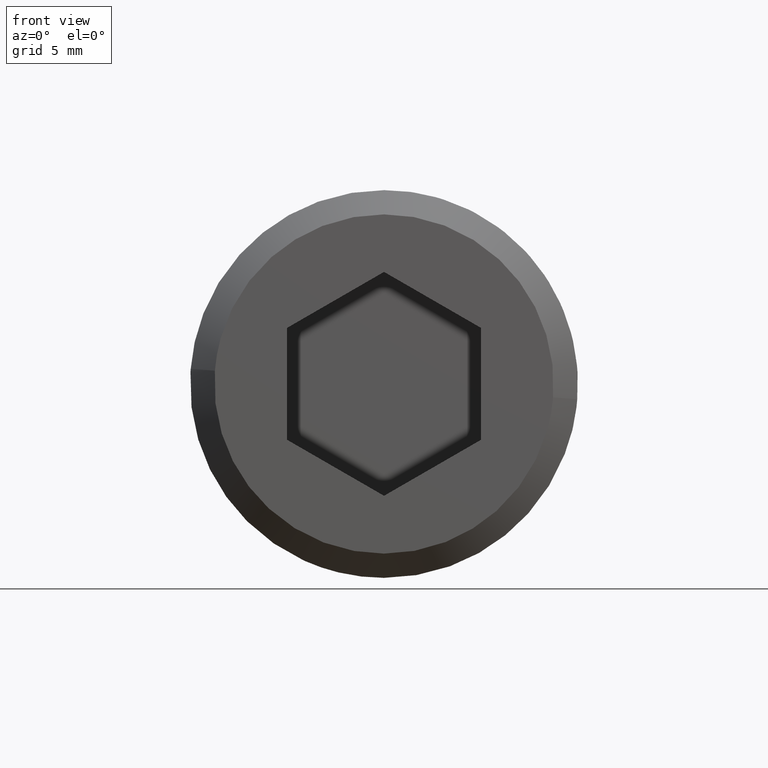
[diagram: clean part render]
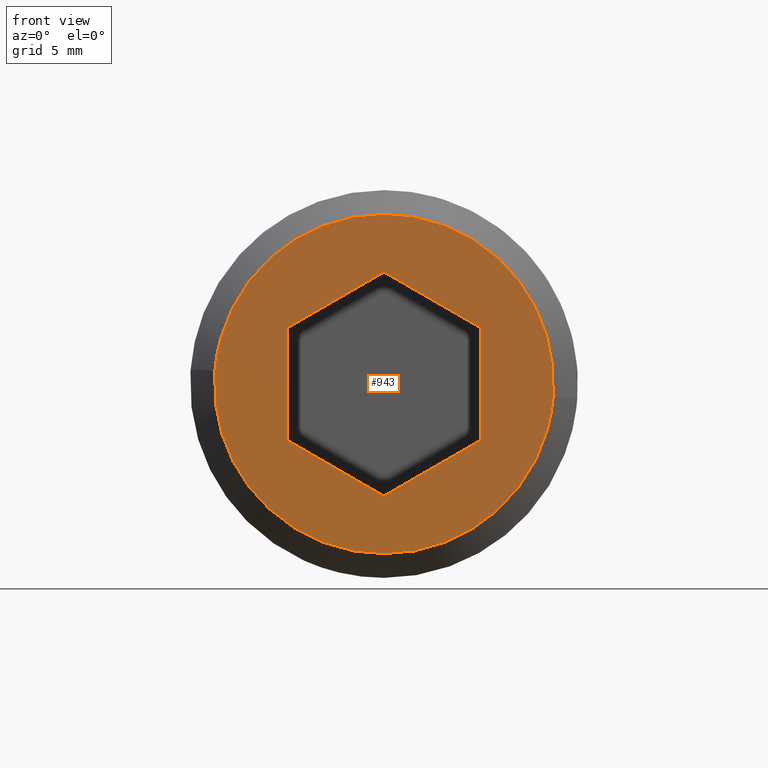
[diagram: same view with one face highlighted and labeled with its STEP entity id]
A machine part, front view. The second image highlights one B-rep face of the part: STEP entity #943.
In plain terms, the highlighted face is a freeform B-spline surface patch.
Its self-contained STEP definition (entity closure, byte-faithful):
#606=CARTESIAN_POINT('',(0.0,-19.100000000000001,-7.000000000000001));
#607=VERTEX_POINT('',#606);
#608=CARTESIAN_POINT('',(6.978421336133015,-19.099999999997181,-0.549213670116594));
#609=VERTEX_POINT('',#608);
#610=CARTESIAN_POINT('',(0.0,-19.100000000000001,-7.000000000000001));
#611=CARTESIAN_POINT('',(6.470733441567542,-19.099999999999998,-7.000000000000003));
#612=CARTESIAN_POINT('',(6.978421336133015,-19.099999999997181,-0.549213670116594));
#620=(BOUNDED_CURVE()B_SPLINE_CURVE(2,(#610,#611,#612),.UNSPECIFIED.,.F.,.U.)B_SPLINE_CURVE_WITH_KNOTS((3,3),(0.0,0.236331300631713),.UNSPECIFIED.)CURVE()GEOMETRIC_REPRESENTATION_ITEM()RATIONAL_B_SPLINE_CURVE((1.0,0.723120658606431,0.969723356169616))REPRESENTATION_ITEM(''));
#621=EDGE_CURVE('',#607,#609,#620,.T.);
#623=CARTESIAN_POINT('',(-6.978421336133015,-19.099999999997181,0.549213670116592));
#624=VERTEX_POINT('',#623);
#625=CARTESIAN_POINT('',(-6.978421336133015,-19.099999999997184,0.549213670116592));
#626=CARTESIAN_POINT('',(-7.0,-19.099999999999994,0.275030749075241));
#627=CARTESIAN_POINT('',(-7.0,-19.100000000000001,-1.291960E-015));
#628=CARTESIAN_POINT('',(-6.999999999999999,-19.099999999999991,-7.000000000000002));
#629=CARTESIAN_POINT('',(0.0,-19.100000000000001,-7.000000000000001));
#637=(BOUNDED_CURVE()B_SPLINE_CURVE(2,(#625,#626,#627,#628,#629),.UNSPECIFIED.,.F.,.U.)B_SPLINE_CURVE_WITH_KNOTS((3,2,3),(0.736331300631713,0.750000000000000,1.0),.UNSPECIFIED.)CURVE()GEOMETRIC_REPRESENTATION_ITEM()RATIONAL_B_SPLINE_CURVE((0.969723356169616,0.983986122580116,1.0,0.707106781186547,1.0))REPRESENTATION_ITEM(''));
#638=EDGE_CURVE('',#624,#607,#637,.T.);
#675=CARTESIAN_POINT('',(0.0,-19.100000000000001,6.999999999999999));
#676=VERTEX_POINT('',#675);
#677=CARTESIAN_POINT('',(6.978421336133015,-19.099999999997184,-0.549213670116594));
#678=CARTESIAN_POINT('',(7.0,-19.099999999999994,-0.275030749075243));
#679=CARTESIAN_POINT('',(7.0,-19.100000000000001,-1.291960E-015));
#680=CARTESIAN_POINT('',(6.999999999999999,-19.099999999999991,6.999999999999999));
#681=CARTESIAN_POINT('',(0.0,-19.100000000000001,6.999999999999999));
#689=(BOUNDED_CURVE()B_SPLINE_CURVE(2,(#677,#678,#679,#680,#681),.UNSPECIFIED.,.F.,.U.)B_SPLINE_CURVE_WITH_KNOTS((3,2,3),(0.236331300631713,0.250000000000000,0.500000000000000),.UNSPECIFIED.)CURVE()GEOMETRIC_REPRESENTATION_ITEM()RATIONAL_B_SPLINE_CURVE((0.969723356169616,0.983986122580116,1.0,0.707106781186547,1.0))REPRESENTATION_ITEM(''));
#690=EDGE_CURVE('',#609,#676,#689,.T.);
#696=CARTESIAN_POINT('',(0.0,-19.100000000000001,6.999999999999999));
#697=CARTESIAN_POINT('',(-6.470733441567567,-19.100000000000005,6.999999999999999));
#698=CARTESIAN_POINT('',(-6.978421336133015,-19.099999999997188,0.549213670116592));
#706=(BOUNDED_CURVE()B_SPLINE_CURVE(2,(#696,#697,#698),.UNSPECIFIED.,.F.,.U.)B_SPLINE_CURVE_WITH_KNOTS((3,3),(0.500000000000000,0.736331300631714),.UNSPECIFIED.)CURVE()GEOMETRIC_REPRESENTATION_ITEM()RATIONAL_B_SPLINE_CURVE((1.0,0.723120658606431,0.969723356169617))REPRESENTATION_ITEM(''));
#707=EDGE_CURVE('',#676,#624,#706,.T.);
#779=CARTESIAN_POINT('',(0.0,-19.100000000000001,4.618802000000000));
#780=VERTEX_POINT('',#779);
#781=CARTESIAN_POINT('',(-4.0,-19.100000000000001,2.309401000000000));
#782=VERTEX_POINT('',#781);
#783=CARTESIAN_POINT('',(0.0,-19.100000000000001,4.618802000000000));
#784=CARTESIAN_POINT('',(-4.0,-19.100000000000001,2.309401000000000));
#785=QUASI_UNIFORM_CURVE('',1,(#783,#784),.UNSPECIFIED.,.F.,.U.);
#786=EDGE_CURVE('',#780,#782,#785,.T.);
#807=CARTESIAN_POINT('',(4.0,-19.100000000000001,2.309401000000000));
#808=VERTEX_POINT('',#807);
#809=CARTESIAN_POINT('',(4.0,-19.100000000000001,2.309401000000000));
#810=CARTESIAN_POINT('',(0.0,-19.100000000000001,4.618802000000000));
#811=QUASI_UNIFORM_CURVE('',1,(#809,#810),.UNSPECIFIED.,.F.,.U.);
#812=EDGE_CURVE('',#808,#780,#811,.T.);
#829=CARTESIAN_POINT('',(4.0,-19.100000000000001,-2.309401000000000));
#830=VERTEX_POINT('',#829);
#831=CARTESIAN_POINT('',(4.0,-19.100000000000001,-2.309401000000000));
#832=CARTESIAN_POINT('',(4.0,-19.100000000000001,2.309401000000000));
#833=QUASI_UNIFORM_CURVE('',1,(#831,#832),.UNSPECIFIED.,.F.,.U.);
#834=EDGE_CURVE('',#830,#808,#833,.T.);
#851=CARTESIAN_POINT('',(0.0,-19.100000000000001,-4.618802000000000));
#852=VERTEX_POINT('',#851);
#853=CARTESIAN_POINT('',(0.0,-19.100000000000001,-4.618802000000000));
#854=CARTESIAN_POINT('',(4.0,-19.100000000000001,-2.309401000000000));
#855=QUASI_UNIFORM_CURVE('',1,(#853,#854),.UNSPECIFIED.,.F.,.U.);
#856=EDGE_CURVE('',#852,#830,#855,.T.);
#873=CARTESIAN_POINT('',(-4.0,-19.100000000000001,-2.309401000000000));
#874=VERTEX_POINT('',#873);
#875=CARTESIAN_POINT('',(-4.0,-19.100000000000001,-2.309401000000000));
#876=CARTESIAN_POINT('',(0.0,-19.100000000000001,-4.618802000000000));
#877=QUASI_UNIFORM_CURVE('',1,(#875,#876),.UNSPECIFIED.,.F.,.U.);
#878=EDGE_CURVE('',#874,#852,#877,.T.);
#895=CARTESIAN_POINT('',(-4.0,-19.100000000000001,2.309401000000000));
#896=CARTESIAN_POINT('',(-4.0,-19.100000000000001,-2.309401000000000));
#897=QUASI_UNIFORM_CURVE('',1,(#895,#896),.UNSPECIFIED.,.F.,.U.);
#898=EDGE_CURVE('',#782,#874,#897,.T.);
#924=CARTESIAN_POINT('',(-7.697163269087966,-19.100000000000001,-7.699299972865284));
#925=CARTESIAN_POINT('',(-7.697163269087966,-19.100000000000001,7.699300348374545));
#926=CARTESIAN_POINT('',(7.697163644597230,-19.100000000000001,-7.699299972865284));
#927=CARTESIAN_POINT('',(7.697163644597230,-19.100000000000001,7.699300348374545));
#928=B_SPLINE_SURFACE_WITH_KNOTS('',1,1,((#924,#926),(#925,#927)),.UNSPECIFIED.,.F.,.F.,.U.,(2,2),(2,2),(0.0,15.398600321239829),(0.0,15.394326913685200),.UNSPECIFIED.);
#929=ORIENTED_EDGE('',*,*,#621,.T.);
#930=ORIENTED_EDGE('',*,*,#690,.T.);
#931=ORIENTED_EDGE('',*,*,#707,.T.);
#932=ORIENTED_EDGE('',*,*,#638,.T.);
#933=EDGE_LOOP('',(#929,#930,#931,#932));
#934=FACE_OUTER_BOUND('',#933,.T.);
#935=ORIENTED_EDGE('',*,*,#878,.F.);
#936=ORIENTED_EDGE('',*,*,#898,.F.);
#937=ORIENTED_EDGE('',*,*,#786,.F.);
#938=ORIENTED_EDGE('',*,*,#812,.F.);
#939=ORIENTED_EDGE('',*,*,#834,.F.);
#940=ORIENTED_EDGE('',*,*,#856,.F.);
#941=EDGE_LOOP('',(#935,#936,#937,#938,#939,#940));
#942=FACE_BOUND('',#941,.T.);
#943=ADVANCED_FACE('',(#934,#942),#928,.F.);